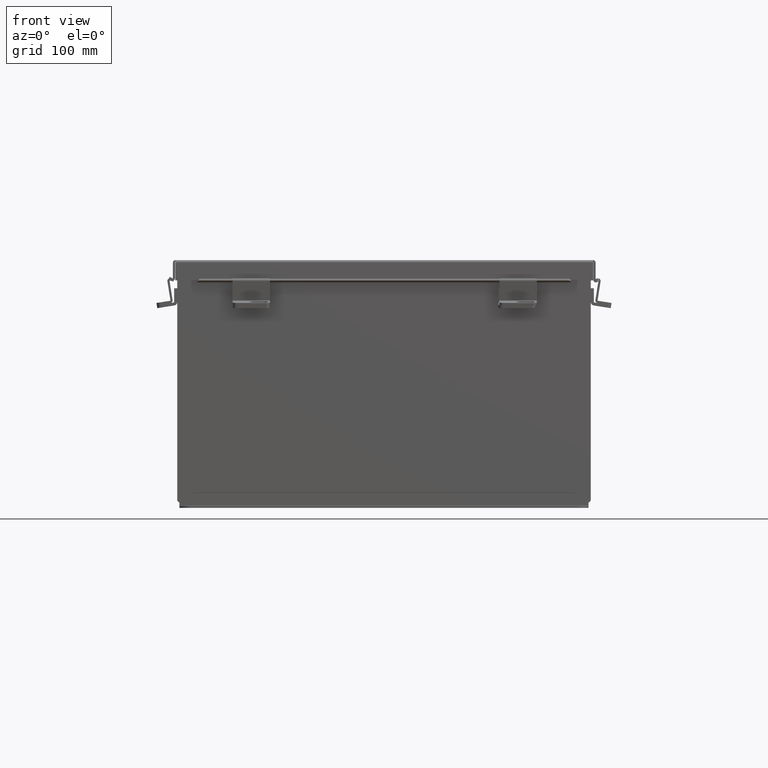
[diagram: clean part render]
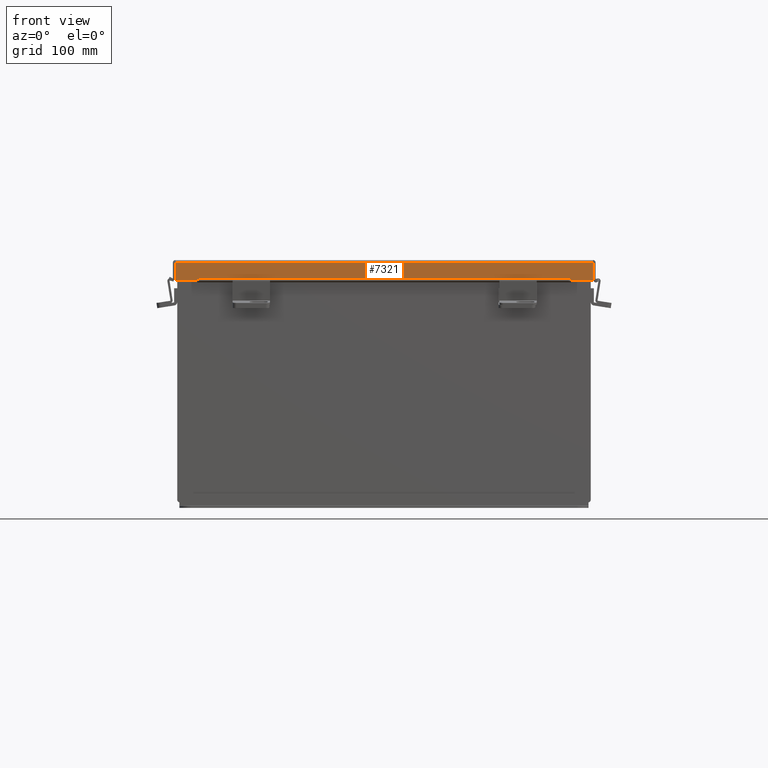
[diagram: same view with one face highlighted and labeled with its STEP entity id]
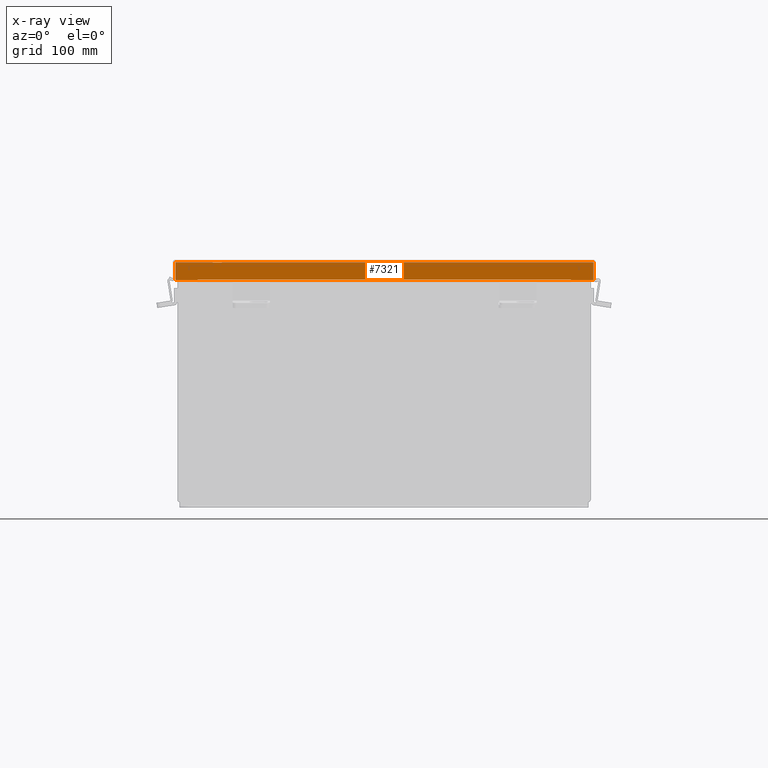
[diagram: x-ray of the same camera — body ghosted, the highlighted face saturated]
A machine part, front view. The second image highlights one B-rep face of the part: STEP entity #7321.
The next image is the same camera in x-ray: the body ghosted, the highlighted face saturated — about 0% of this face is hidden behind the body in this view.
In plain terms, the highlighted planar face has unit normal (0, 1, -0).
Its self-contained STEP definition (entity closure, byte-faithful):
#47 = VERTEX_POINT ( 'NONE', #8994 ) ;
#238 = DIRECTION ( 'NONE',  ( -1.000000000000000000, -3.191323508412550700E-030, -0.0000000000000000000 ) ) ;
#255 = CARTESIAN_POINT ( 'NONE',  ( 7.074478932188152500, -8.156249999999998200, -2.950395833157404200E-014 ) ) ;
#387 = LINE ( 'NONE', #255, #4353 ) ;
#535 = EDGE_CURVE ( 'NONE', #6764, #8123, #6242, .T. ) ;
#539 = CARTESIAN_POINT ( 'NONE',  ( -7.074478932188151600, -8.156249999999998200, 0.01299999999999901400 ) ) ;
#626 = CARTESIAN_POINT ( 'NONE',  ( 6.324478932188150700, -8.156250000000000000, 0.5967115427318782100 ) ) ;
#950 = VERTEX_POINT ( 'NONE', #3086 ) ;
#961 = ORIENTED_EDGE ( 'NONE', *, *, #7055, .T. ) ;
#1351 = DIRECTION ( 'NONE',  ( -1.000000000000000000, -3.216596107564956000E-030, 4.771786888496653900E-018 ) ) ;
#1356 = ORIENTED_EDGE ( 'NONE', *, *, #6811, .F. ) ;
#1592 = CARTESIAN_POINT ( 'NONE',  ( -6.324478932188150700, -8.156250000000000000, 0.5967115427318782100 ) ) ;
#1613 = DIRECTION ( 'NONE',  ( 2.102977566036141700E-013, 1.401985044024087200E-013, -1.000000000000000000 ) ) ;
#1813 = VERTEX_POINT ( 'NONE', #1980 ) ;
#1980 = CARTESIAN_POINT ( 'NONE',  ( -6.324478932188148100, -8.156250000000000000, 0.5967115427318782100 ) ) ;
#2318 = DIRECTION ( 'NONE',  ( 1.000000000000000000, 3.215975411700707400E-030, -0.0000000000000000000 ) ) ;
#2335 = VECTOR ( 'NONE', #2318, 39.37007874015748100 ) ;
#2663 = ORIENTED_EDGE ( 'NONE', *, *, #7647, .F. ) ;
#2684 = FACE_OUTER_BOUND ( 'NONE', #4842, .T. ) ;
#2721 = EDGE_CURVE ( 'NONE', #47, #6990, #4559, .T. ) ;
#2750 = DIRECTION ( 'NONE',  ( -0.0000000000000000000, -3.569293475308494500E-015, 1.000000000000000000 ) ) ;
#2782 = CARTESIAN_POINT ( 'NONE',  ( 7.074478932188151600, -8.156249999999998200, 0.01300000000000010700 ) ) ;
#2980 = EDGE_CURVE ( 'NONE', #47, #1813, #7775, .T. ) ;
#3032 = CARTESIAN_POINT ( 'NONE',  ( 6.324478932188150700, -8.156250000000000000, 0.6123000000000005100 ) ) ;
#3086 = CARTESIAN_POINT ( 'NONE',  ( 6.324478932188150700, -8.156250000000000000, 0.5967115427318782100 ) ) ;
#3402 = VERTEX_POINT ( 'NONE', #3032 ) ;
#3482 = DIRECTION ( 'NONE',  ( 0.0000000000000000000, -3.569293475308493700E-015, 1.000000000000000000 ) ) ;
#3535 = ORIENTED_EDGE ( 'NONE', *, *, #2980, .F. ) ;
#3747 = CARTESIAN_POINT ( 'NONE',  ( -7.074478932188151600, -8.156250000000000000, 0.6122999999999994000 ) ) ;
#4021 = CARTESIAN_POINT ( 'NONE',  ( -6.324478932188150700, -8.156250000000003600, 0.6122999999999982900 ) ) ;
#4312 = CARTESIAN_POINT ( 'NONE',  ( 2.134256245050205600E-018, -8.156250000000000000, 0.6122999999999994000 ) ) ;
#4353 = VECTOR ( 'NONE', #5508, 39.37007874015748100 ) ;
#4551 = VECTOR ( 'NONE', #5651, 39.37007874015748100 ) ;
#4559 = LINE ( 'NONE', #7268, #4551 ) ;
#4703 = VECTOR ( 'NONE', #5908, 39.37007874015748100 ) ;
#4842 = EDGE_LOOP ( 'NONE', ( #3535, #7038, #5577, #8034, #961, #7072, #1356, #2663 ) ) ;
#4890 = AXIS2_PLACEMENT_3D ( 'NONE', #5765, #8060, #3482 ) ;
#5128 = VECTOR ( 'NONE', #1613, 39.37007874015748100 ) ;
#5267 = CARTESIAN_POINT ( 'NONE',  ( 7.074478932188151600, -8.156250000000000000, 0.6123000000000005100 ) ) ;
#5508 = DIRECTION ( 'NONE',  ( 0.0000000000000000000, -3.569293475308494500E-015, 1.000000000000000000 ) ) ;
#5577 = ORIENTED_EDGE ( 'NONE', *, *, #9314, .F. ) ;
#5651 = DIRECTION ( 'NONE',  ( -1.000000000000000000, -3.216596107564956000E-030, 4.771786888496653900E-018 ) ) ;
#5765 = CARTESIAN_POINT ( 'NONE',  ( 0.0000000000000000000, -8.156249999999998200, -2.950395833157404200E-014 ) ) ;
#5807 = CARTESIAN_POINT ( 'NONE',  ( -7.074478932188151600, -8.156249999999998200, -1.092739197465705300E-015 ) ) ;
#5908 = DIRECTION ( 'NONE',  ( 0.0000000000000000000, -7.009925220120261700E-014, 1.000000000000000000 ) ) ;
#6041 = VECTOR ( 'NONE', #1351, 39.37007874015748100 ) ;
#6242 = LINE ( 'NONE', #8791, #9759 ) ;
#6519 = VERTEX_POINT ( 'NONE', #5267 ) ;
#6764 = VERTEX_POINT ( 'NONE', #2782 ) ;
#6811 = EDGE_CURVE ( 'NONE', #950, #3402, #6989, .T. ) ;
#6966 = VECTOR ( 'NONE', #2750, 39.37007874015748100 ) ;
#6989 = LINE ( 'NONE', #626, #4703 ) ;
#6990 = VERTEX_POINT ( 'NONE', #3747 ) ;
#7038 = ORIENTED_EDGE ( 'NONE', *, *, #2721, .T. ) ;
#7055 = EDGE_CURVE ( 'NONE', #6764, #6519, #387, .T. ) ;
#7072 = ORIENTED_EDGE ( 'NONE', *, *, #7423, .T. ) ;
#7268 = CARTESIAN_POINT ( 'NONE',  ( 2.134256245050205600E-018, -8.156250000000000000, 0.6122999999999994000 ) ) ;
#7321 = ADVANCED_FACE ( 'NONE', ( #2684 ), #9608, .F. ) ;
#7423 = EDGE_CURVE ( 'NONE', #6519, #3402, #8072, .T. ) ;
#7647 = EDGE_CURVE ( 'NONE', #1813, #950, #8407, .T. ) ;
#7775 = LINE ( 'NONE', #4021, #5128 ) ;
#8034 = ORIENTED_EDGE ( 'NONE', *, *, #535, .F. ) ;
#8060 = DIRECTION ( 'NONE',  ( 3.183015112497910400E-030, 1.000000000000000000, 3.569293475308493700E-015 ) ) ;
#8072 = LINE ( 'NONE', #4312, #6041 ) ;
#8123 = VERTEX_POINT ( 'NONE', #539 ) ;
#8407 = LINE ( 'NONE', #1592, #2335 ) ;
#8791 = CARTESIAN_POINT ( 'NONE',  ( -7.156250000000016900, -8.156249999999998200, 0.01300000000000010700 ) ) ;
#8994 = CARTESIAN_POINT ( 'NONE',  ( -6.324478932188150700, -8.156250000000000000, 0.6122999999999994000 ) ) ;
#9026 = LINE ( 'NONE', #5807, #6966 ) ;
#9314 = EDGE_CURVE ( 'NONE', #8123, #6990, #9026, .T. ) ;
#9608 = PLANE ( 'NONE',  #4890 ) ;
#9759 = VECTOR ( 'NONE', #238, 39.37007874015748100 ) ;